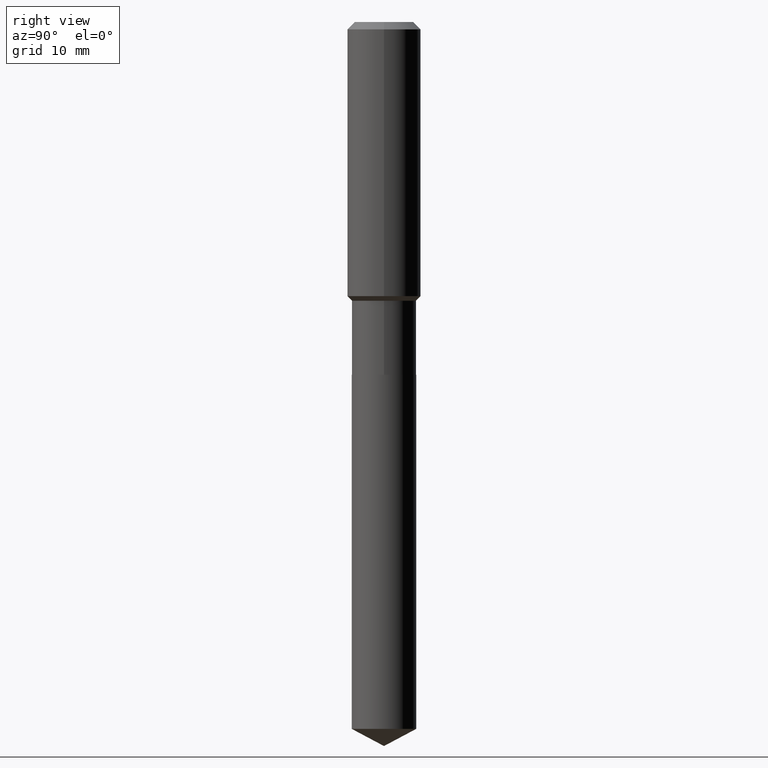
[diagram: clean part render]
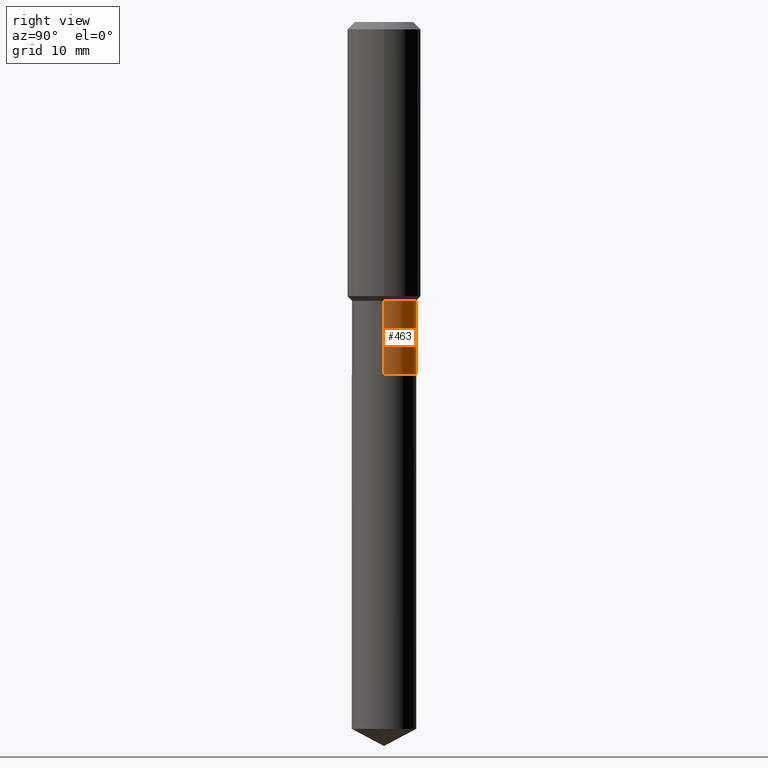
[diagram: same view with one face highlighted and labeled with its STEP entity id]
A machine part, right view. The second image highlights one B-rep face of the part: STEP entity #463.
In plain terms, the highlighted cylindrical surface (edge-blend (fillet) strip) has radius 5.2502 mm, axis along (-0, 0, 1).
Its self-contained STEP definition (entity closure, byte-faithful):
#25 = AXIS2_PLACEMENT_3D ( 'NONE', #367, #212, #375 ) ;
#40 = EDGE_CURVE ( 'NONE', #103, #72, #191, .T. ) ;
#42 = CARTESIAN_POINT ( 'NONE',  ( 4.373476412981496355E-29, -6.244165226387079301E-15, -1.788399999999999324 ) ) ;
#46 = DIRECTION ( 'NONE',  ( -2.445468806185136877E-29, 3.491481338843145188E-15, 1.000000000000000000 ) ) ;
#48 = VERTEX_POINT ( 'NONE', #181 ) ;
#58 = CARTESIAN_POINT ( 'NONE',  ( 5.534829549038819808E-29, -7.902269714203691232E-15, -2.263300000000000090 ) ) ;
#72 = VERTEX_POINT ( 'NONE', #397 ) ;
#86 = VERTEX_POINT ( 'NONE', #282 ) ;
#103 = VERTEX_POINT ( 'NONE', #322 ) ;
#104 = DIRECTION ( 'NONE',  ( -2.445468806185136877E-29, 3.491481338843145188E-15, 1.000000000000000000 ) ) ;
#139 = AXIS2_PLACEMENT_3D ( 'NONE', #58, #331, #456 ) ;
#142 = ORIENTED_EDGE ( 'NONE', *, *, #453, .F. ) ;
#177 = CIRCLE ( 'NONE', #139, 0.2067000000000000226 ) ;
#181 = CARTESIAN_POINT ( 'NONE',  ( -0.2067000000000000226, -5.604525635479257035E-15, -2.263300000000000090 ) ) ;
#184 = DIRECTION ( 'NONE',  ( 1.000000000000000000, -6.982962677686264344E-15, 0.000000000000000000 ) ) ;
#191 = CIRCLE ( 'NONE', #266, 0.2066999999999999393 ) ;
#206 = FACE_OUTER_BOUND ( 'NONE', #419, .T. ) ;
#212 = DIRECTION ( 'NONE',  ( -2.445468806185136597E-29, 3.491481338843145583E-15, 1.000000000000000000 ) ) ;
#223 = DIRECTION ( 'NONE',  ( -2.445468806185136597E-29, 3.491481338843145583E-15, 1.000000000000000000 ) ) ;
#224 = LINE ( 'NONE', #388, #360 ) ;
#253 = CYLINDRICAL_SURFACE ( 'NONE', #25, 0.2066999999999999671 ) ;
#266 = AXIS2_PLACEMENT_3D ( 'NONE', #42, #223, #184 ) ;
#282 = CARTESIAN_POINT ( 'NONE',  ( 0.2067000000000000226, -9.345648099681442448E-15, -2.263300000000000090 ) ) ;
#322 = CARTESIAN_POINT ( 'NONE',  ( 0.2066999999999999393, -7.687543611864829727E-15, -1.788399999999999324 ) ) ;
#326 = CARTESIAN_POINT ( 'NONE',  ( 0.2066999999999999671, -1.443378385477751018E-15, 1.007905739557019780E-29 ) ) ;
#331 = DIRECTION ( 'NONE',  ( -2.445468806185136597E-29, 3.491481338843145583E-15, 1.000000000000000000 ) ) ;
#354 = EDGE_CURVE ( 'NONE', #48, #72, #224, .T. ) ;
#357 = ORIENTED_EDGE ( 'NONE', *, *, #354, .T. ) ;
#358 = ORIENTED_EDGE ( 'NONE', *, *, #423, .T. ) ;
#360 = VECTOR ( 'NONE', #46, 39.37007874015748143 ) ;
#367 = CARTESIAN_POINT ( 'NONE',  ( 0.000000000000000000, 0.000000000000000000, 0.000000000000000000 ) ) ;
#375 = DIRECTION ( 'NONE',  ( 1.000000000000000000, -6.982962677686266711E-15, 4.876176775795935793E-29 ) ) ;
#385 = VECTOR ( 'NONE', #104, 39.37007874015748143 ) ;
#388 = CARTESIAN_POINT ( 'NONE',  ( -0.2066999999999999671, 1.468691834816126850E-15, -1.016743883155689005E-29 ) ) ;
#397 = CARTESIAN_POINT ( 'NONE',  ( -0.2066999999999999393, -5.604525635479257824E-15, -1.788399999999999324 ) ) ;
#419 = EDGE_LOOP ( 'NONE', ( #358, #357, #447, #142 ) ) ;
#423 = EDGE_CURVE ( 'NONE', #86, #48, #177, .T. ) ;
#445 = LINE ( 'NONE', #326, #385 ) ;
#447 = ORIENTED_EDGE ( 'NONE', *, *, #40, .F. ) ;
#453 = EDGE_CURVE ( 'NONE', #86, #103, #445, .T. ) ;
#456 = DIRECTION ( 'NONE',  ( 1.000000000000000000, -6.982962677686269866E-15, 0.000000000000000000 ) ) ;
#463 = ADVANCED_FACE ( 'NONE', ( #206 ), #253, .T. ) ;